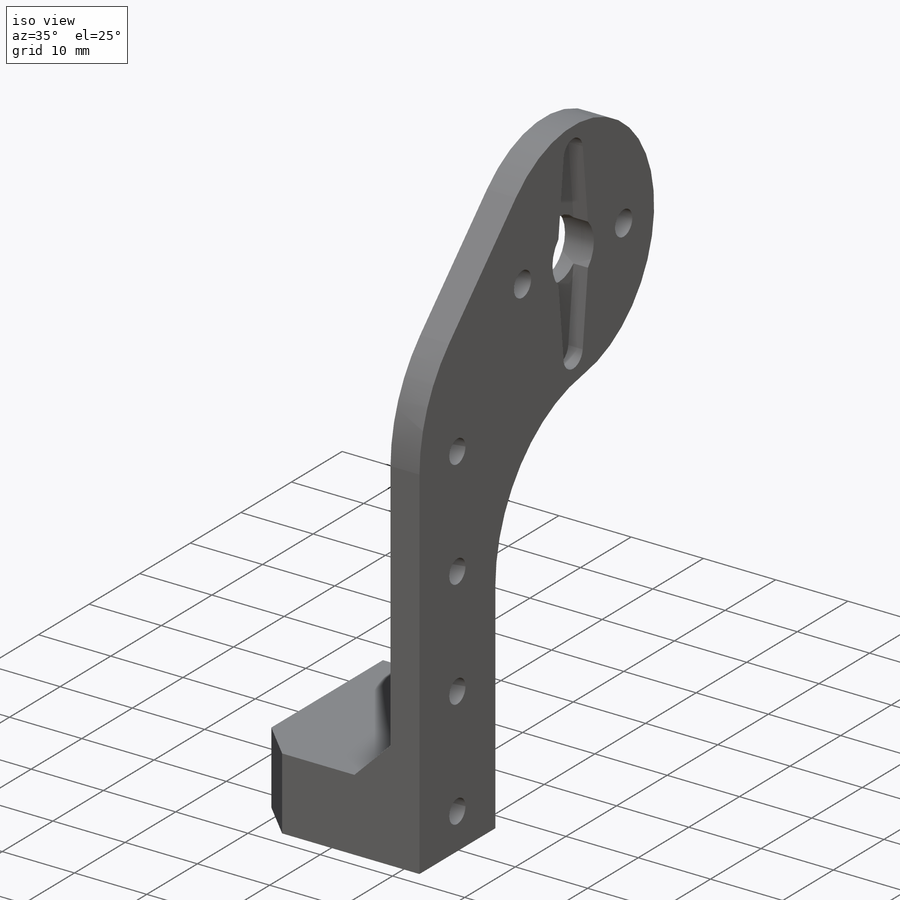
[diagram: iso view]
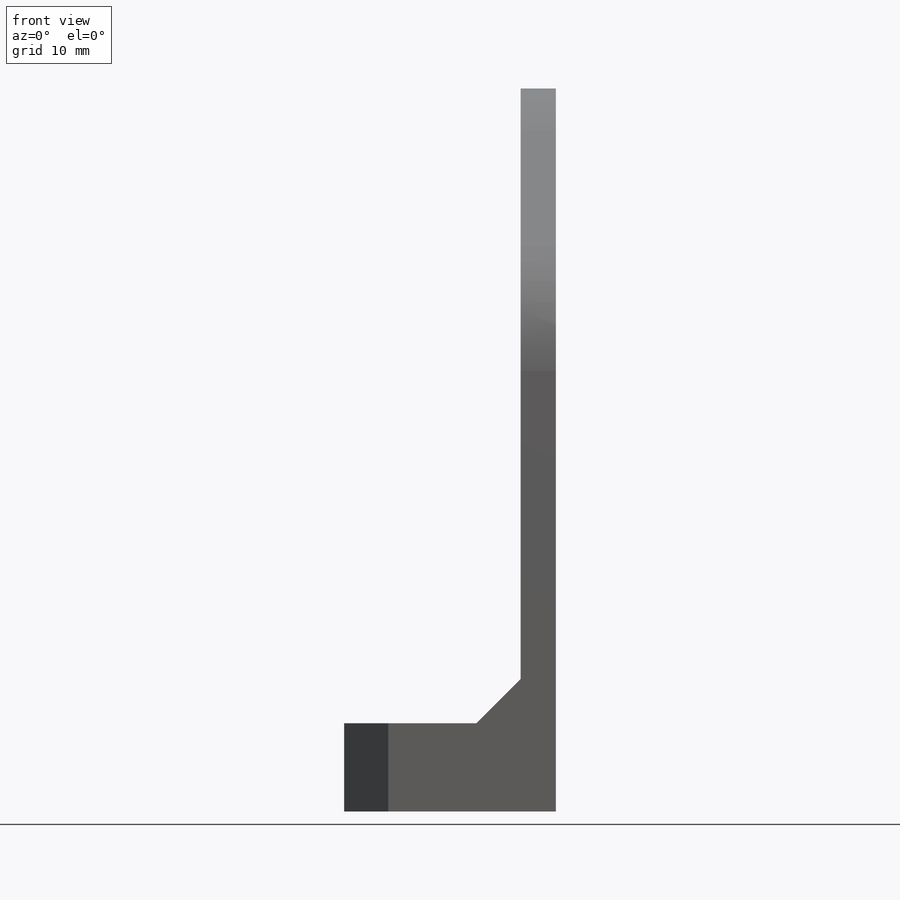
[diagram: front view]
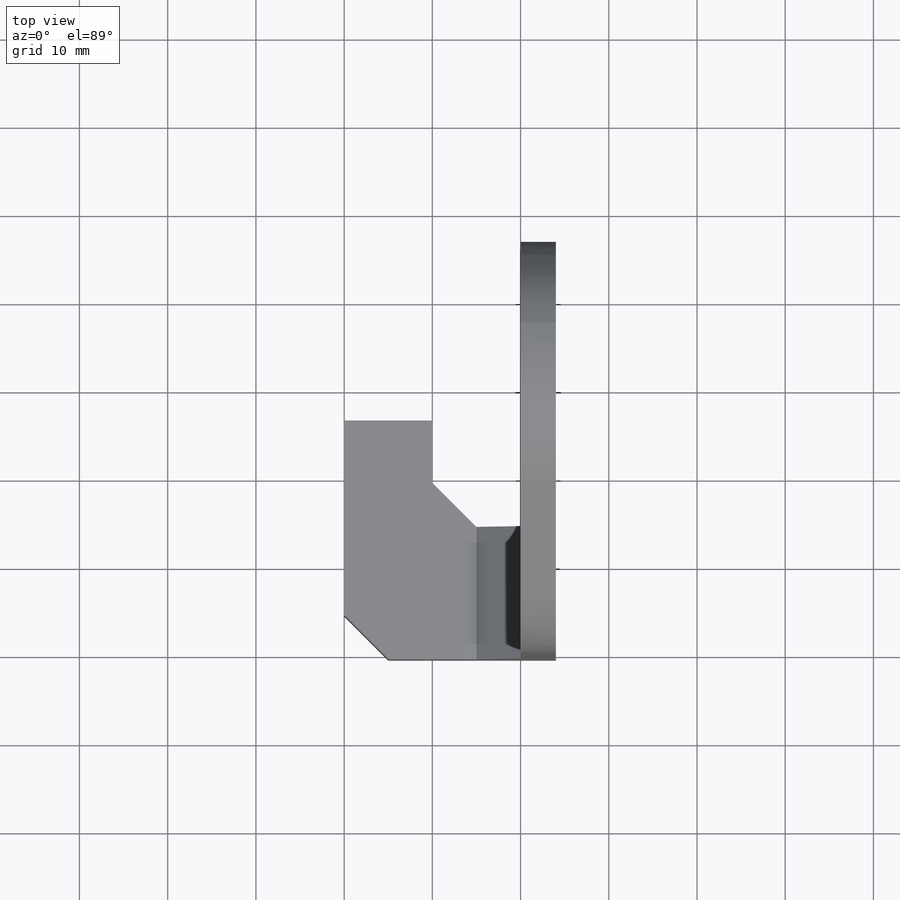
[diagram: top view]
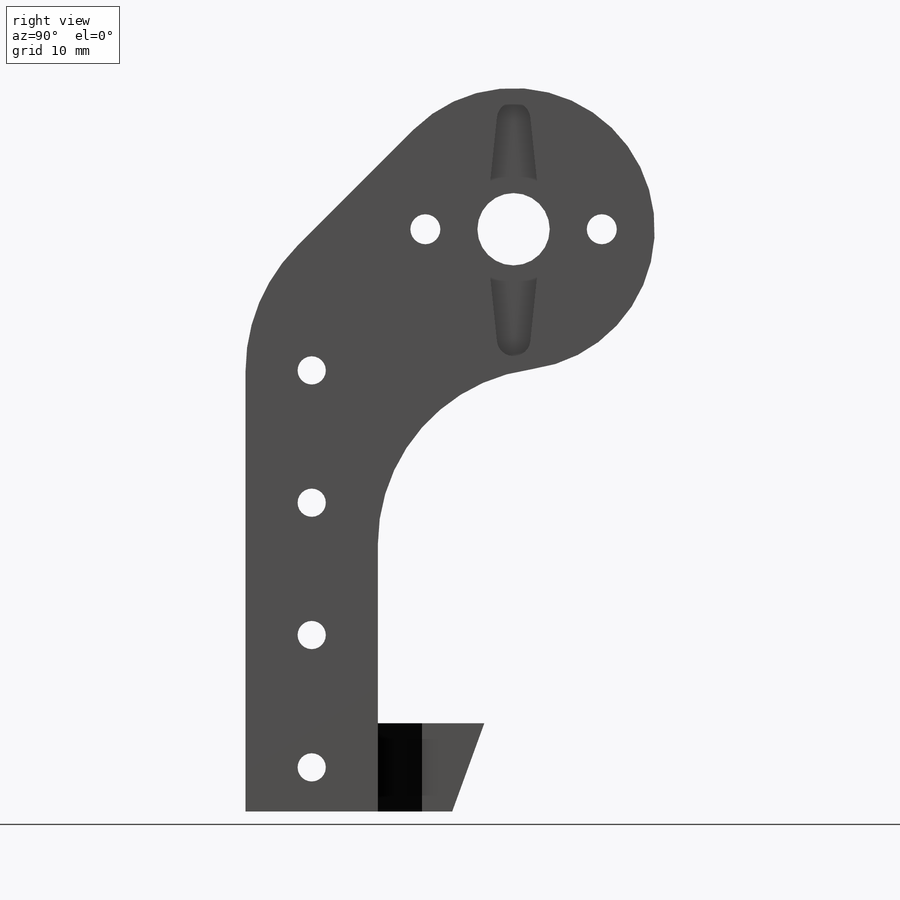
[diagram: right view]
SOLIDWORKS PART (.sldprt)
format: sldprt  version: not decoded by parser v0  size: 299,520 bytes
history: native  units: mm
features: sketch x9, cut_extrude x4, extrude x3, material x1, hole x1, fillet x1, chamfer x1 (+13 scaffold rows collapsed)
feature tree (33):
  scaffold x13  (default folders/planes/origin — collapsed)
  material  "Material <not specified>"
  sketch  "Sketch1"  dims[D1=32.0mm]
  extrude  "Boss-Extrude1"  Depth=4mm
  sketch  "Sketch5"  dims[D1=1.9mm D2=4.0mm D4=6.4mm D3=25.0mm]
  cut_extrude  "Cut-Extrude2"  Depth=2mm
  sketch  "Sketch3"  dims[D1=8.2mm]
  cut_extrude  "Cut-Extrude1"  [1 undecoded]
  hole  "CSK for M3 Countersunk Flat Head Screw1"  Diameter=3.4mm Depth=28mm
  sketch  "Sketch8"  dims[D1=20.0mm]
  sketch  "Sketch7"  dims[hole-wizard template sketch: 55 standard entries collapsed; hole parameters kept: c17.Thru Hole Depth=28.0mm c17.Near C'Sink Dia.=6.3mm c17.D4=~3.666174mm c17.Near C'Sink Angle=90.0deg]
  sketch  "Sketch9"  dims[c1.D1=15.0mm c1.D2=~23.889059mm c2.D2=45.0deg c2.D3=50.0mm]
  extrude  "Boss-Extrude3"  [1 undecoded]
  fillet  "Fillet3"  Radius=20mm
  sketch  "Sketch11"  dims[D1=10.0mm D2=20.0mm D3=~30.381571mm]
  extrude  "Boss-Extrude4"  Depth=10mm
  chamfer  "Chamfer1"  Distance=5mm Angle=45deg
  sketch  "Sketch12"  dims[D1=~6.955897mm D2=~3.316195mm]
  cut_extrude  "Cut-Extrude5"  [1 undecoded]
  sketch  "Sketch10"  dims[D1=3.2mm D2=15.0mm D3=15.0mm D4=15.0mm D5=5.0mm]
  cut_extrude  "Cut-Extrude4"  [1 undecoded]
decode coverage: 15 of 19 modeling features carry decoded parameters
note: ~ marks probable driven/reference dimensions
note: 4 parameter values undecoded
summary: no parameter record found for 4 features
note: suppression state not decoded; provenance and decode notes live in map.json
